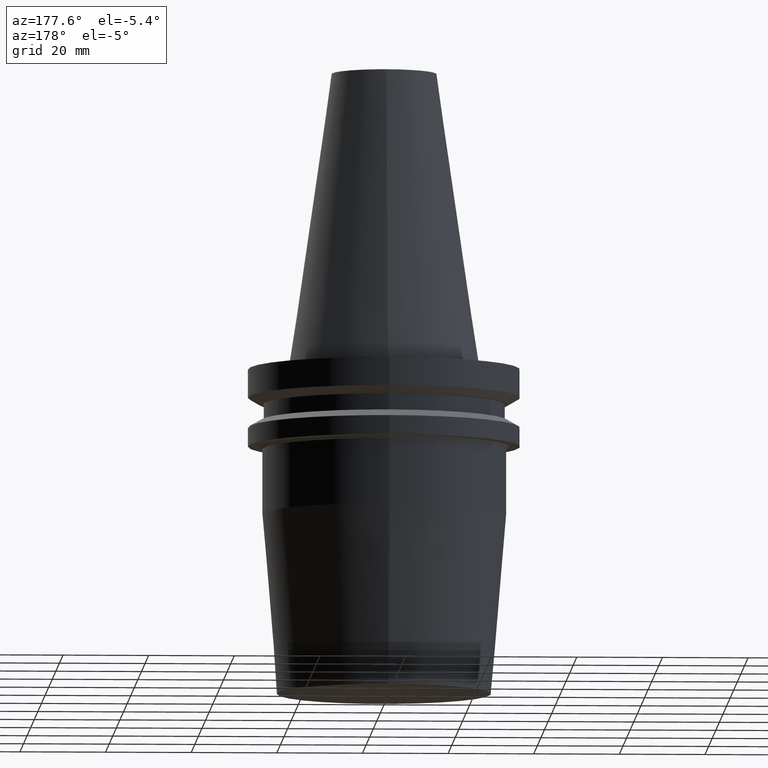
[diagram: clean part render]
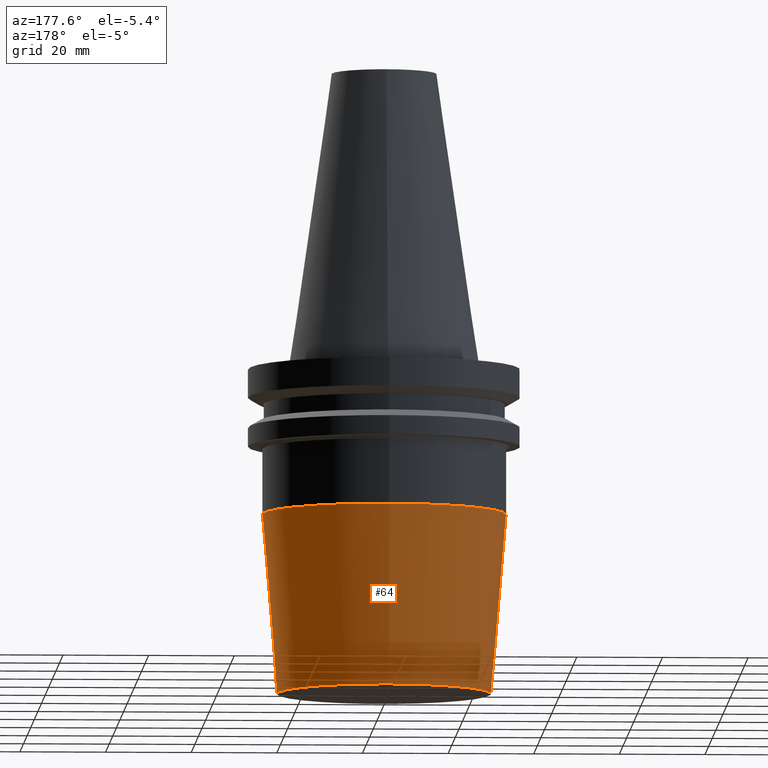
[diagram: same view with one face highlighted and labeled with its STEP entity id]
A machine part, auxiliary view. The second image highlights one B-rep face of the part: STEP entity #64.
In plain terms, the highlighted conical surface has half-angle 4.764 deg.
Its self-contained STEP definition (entity closure, byte-faithful):
#64=ADVANCED_FACE('Unnamed[1]',(#165,#166),#167,.T.);
#80=EDGE_CURVE('Unnamed[1]',#191,#191,#192,.T.);
#110=EDGE_CURVE('Unnamed[1]',#236,#236,#237,.T.);
#165=FACE_BOUND('',#301,.T.);
#166=FACE_BOUND('',#302,.T.);
#167=CONICAL_SURFACE('',#303,26.75,0.083141231888442);
#191=VERTEX_POINT('',#333);
#192=CIRCLE('',#334,28.5000000000001);
#236=VERTEX_POINT('',#389);
#237=CIRCLE('',#390,25.0);
#301=EDGE_LOOP('',(#455));
#302=EDGE_LOOP('',(#456));
#303=AXIS2_PLACEMENT_3D('',#457,#458,#459);
#333=CARTESIAN_POINT('',(2.14313189850787E-015,28.5,-35.0));
#334=AXIS2_PLACEMENT_3D('',#486,#487,#488);
#389=CARTESIAN_POINT('',(4.71489017671733E-015,24.9999999999999,-77.0000000000003));
#390=AXIS2_PLACEMENT_3D('',#534,#535,#536);
#455=ORIENTED_EDGE('',*,*,#110,.F.);
#456=ORIENTED_EDGE('',*,*,#80,.T.);
#457=CARTESIAN_POINT('',(3.4290110376126E-015,-2.3848429537678E-014,-56.0000000000002));
#458=DIRECTION('',(-6.12323399573677E-017,1.22696610407857E-016,1.0));
#459=DIRECTION('',(2.68584782934555E-033,1.0,-1.22696610407857E-016));
#486=CARTESIAN_POINT('',(2.14313189850787E-015,-2.12718007191132E-014,-35.0));
#487=DIRECTION('',(6.12323399573677E-017,-1.22696610407861E-016,-1.0));
#488=DIRECTION('',(2.68584782934325E-033,1.0,-1.22696610407861E-016));
#534=CARTESIAN_POINT('',(4.71489017671733E-015,-2.64250583562428E-014,-77.0000000000003));
#535=DIRECTION('',(6.12323399573677E-017,-1.22696610407853E-016,-1.0));
#536=DIRECTION('',(2.68584782934099E-033,1.0,-1.22696610407853E-016));